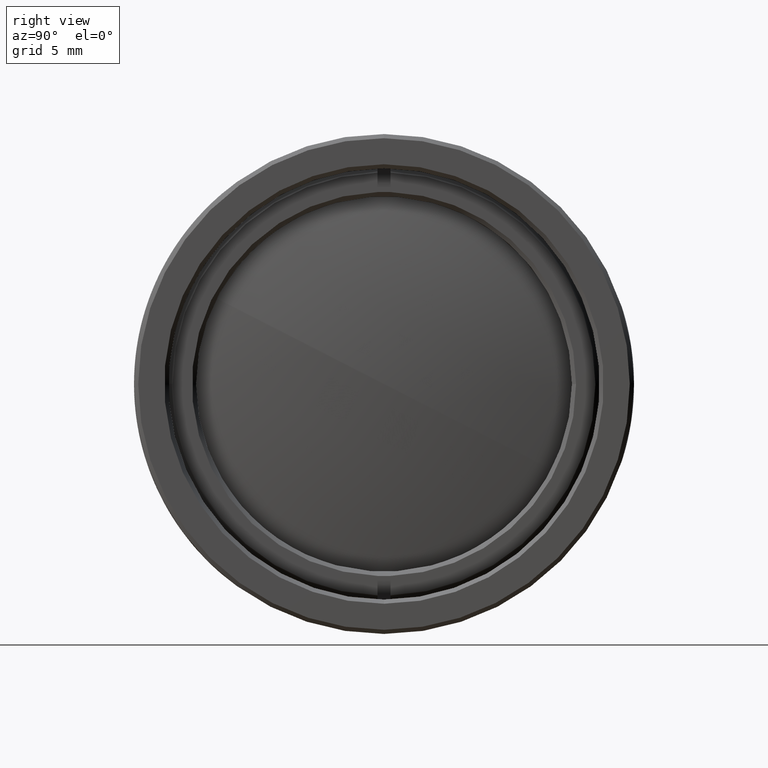
[diagram: clean part render]
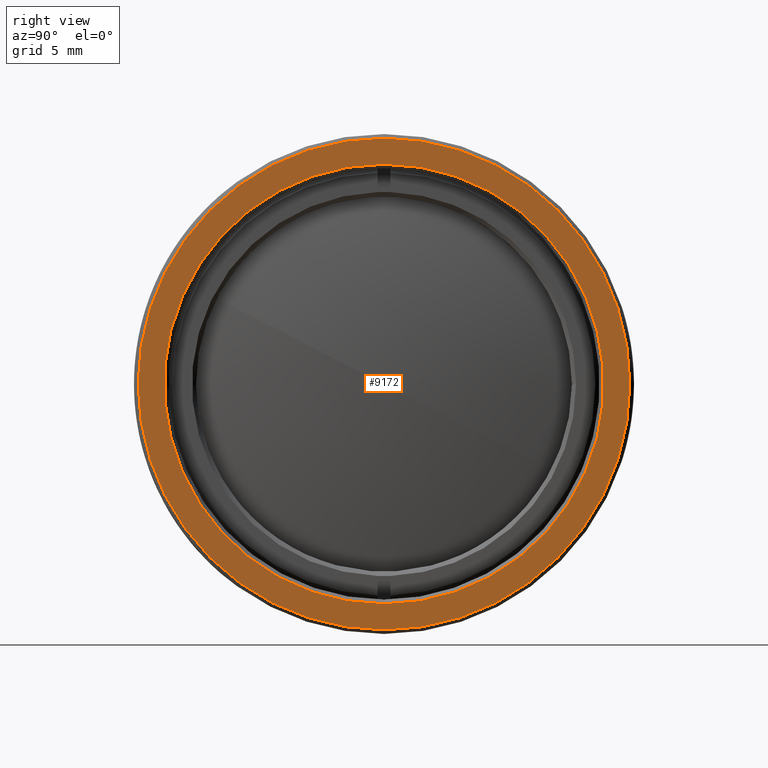
[diagram: same view with one face highlighted and labeled with its STEP entity id]
A machine part, right view. The second image highlights one B-rep face of the part: STEP entity #9172.
In plain terms, the highlighted planar face has unit normal (1, 0, -0).
Its self-contained STEP definition (entity closure, byte-faithful):
#33 = CARTESIAN_POINT ( 'NONE',  ( -1.944126793646422548E-16, 0.0000000000000000000, -13.39849999999999319 ) ) ;
#757 = ORIENTED_EDGE ( 'NONE', *, *, #2296, .T. ) ;
#929 = VERTEX_POINT ( 'NONE', #7678 ) ;
#953 = DIRECTION ( 'NONE',  ( 1.000000000000000000, -0.0000000000000000000, -0.0000000000000000000 ) ) ;
#1156 = CARTESIAN_POINT ( 'NONE',  ( -1.944126793646422548E-16, 0.0000000000000000000, 0.0000000000000000000 ) ) ;
#1498 = AXIS2_PLACEMENT_3D ( 'NONE', #1156, #2750, #4294 ) ;
#1657 = EDGE_CURVE ( 'NONE', #4049, #5104, #9946, .T. ) ;
#1713 = CIRCLE ( 'NONE', #1498, 13.39849999999999319 ) ;
#1989 = AXIS2_PLACEMENT_3D ( 'NONE', #6187, #10022, #7034 ) ;
#2065 = CARTESIAN_POINT ( 'NONE',  ( -1.944126793646422548E-16, 0.0000000000000000000, 14.98599999999999888 ) ) ;
#2296 = EDGE_CURVE ( 'NONE', #929, #8793, #1713, .T. ) ;
#2486 = DIRECTION ( 'NONE',  ( -0.0000000000000000000, 0.0000000000000000000, -1.000000000000000000 ) ) ;
#2750 = DIRECTION ( 'NONE',  ( -1.000000000000000000, 0.0000000000000000000, 0.0000000000000000000 ) ) ;
#3025 = EDGE_LOOP ( 'NONE', ( #6867, #5803 ) ) ;
#3484 = FACE_OUTER_BOUND ( 'NONE', #3025, .T. ) ;
#4049 = VERTEX_POINT ( 'NONE', #5484 ) ;
#4197 = CARTESIAN_POINT ( 'NONE',  ( -1.944126793646422548E-16, 0.0000000000000000000, 0.0000000000000000000 ) ) ;
#4294 = DIRECTION ( 'NONE',  ( 0.0000000000000000000, 0.0000000000000000000, -1.000000000000000000 ) ) ;
#4881 = AXIS2_PLACEMENT_3D ( 'NONE', #7129, #953, #7068 ) ;
#5094 = AXIS2_PLACEMENT_3D ( 'NONE', #4197, #8773, #9596 ) ;
#5104 = VERTEX_POINT ( 'NONE', #2065 ) ;
#5195 = EDGE_LOOP ( 'NONE', ( #9340, #757 ) ) ;
#5484 = CARTESIAN_POINT ( 'NONE',  ( -1.944126793646422548E-16, 1.850808707551394711E-15, -14.98599999999999888 ) ) ;
#5494 = EDGE_CURVE ( 'NONE', #8793, #929, #7635, .T. ) ;
#5784 = AXIS2_PLACEMENT_3D ( 'NONE', #7092, #9408, #2486 ) ;
#5803 = ORIENTED_EDGE ( 'NONE', *, *, #1657, .T. ) ;
#6187 = CARTESIAN_POINT ( 'NONE',  ( -1.944126793646422548E-16, 0.0000000000000000000, 0.0000000000000000000 ) ) ;
#6248 = PLANE ( 'NONE',  #5784 ) ;
#6867 = ORIENTED_EDGE ( 'NONE', *, *, #9938, .T. ) ;
#6882 = FACE_BOUND ( 'NONE', #5195, .T. ) ;
#7034 = DIRECTION ( 'NONE',  ( 0.0000000000000000000, 0.0000000000000000000, -1.000000000000000000 ) ) ;
#7068 = DIRECTION ( 'NONE',  ( 0.0000000000000000000, 0.0000000000000000000, -1.000000000000000000 ) ) ;
#7092 = CARTESIAN_POINT ( 'NONE',  ( -1.944126793646422548E-16, 15.23999999999999844, 0.0000000000000000000 ) ) ;
#7129 = CARTESIAN_POINT ( 'NONE',  ( -1.944126793646422548E-16, 0.0000000000000000000, 0.0000000000000000000 ) ) ;
#7635 = CIRCLE ( 'NONE', #5094, 13.39849999999999319 ) ;
#7678 = CARTESIAN_POINT ( 'NONE',  ( -1.944126793646422548E-16, 1.640843013837580427E-15, 13.39849999999999319 ) ) ;
#8773 = DIRECTION ( 'NONE',  ( -1.000000000000000000, 0.0000000000000000000, 0.0000000000000000000 ) ) ;
#8793 = VERTEX_POINT ( 'NONE', #33 ) ;
#9172 = ADVANCED_FACE ( 'NONE', ( #6882, #3484 ), #6248, .T. ) ;
#9340 = ORIENTED_EDGE ( 'NONE', *, *, #5494, .T. ) ;
#9408 = DIRECTION ( 'NONE',  ( 1.000000000000000000, 0.0000000000000000000, -0.0000000000000000000 ) ) ;
#9596 = DIRECTION ( 'NONE',  ( 0.0000000000000000000, 0.0000000000000000000, -1.000000000000000000 ) ) ;
#9938 = EDGE_CURVE ( 'NONE', #5104, #4049, #10006, .T. ) ;
#9946 = CIRCLE ( 'NONE', #4881, 14.98599999999999888 ) ;
#10006 = CIRCLE ( 'NONE', #1989, 14.98599999999999888 ) ;
#10022 = DIRECTION ( 'NONE',  ( 1.000000000000000000, -0.0000000000000000000, -0.0000000000000000000 ) ) ;